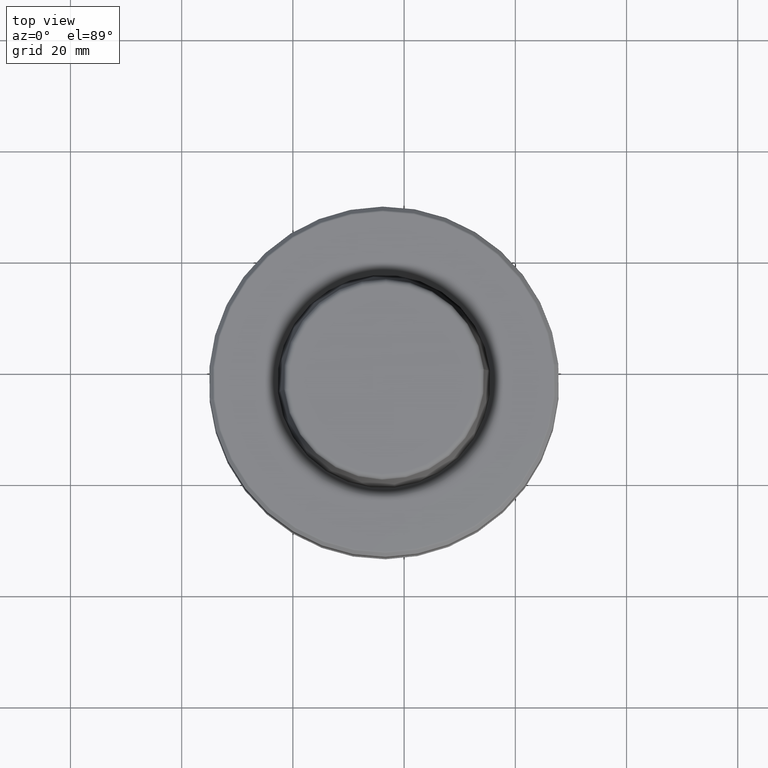
[diagram: clean part render]
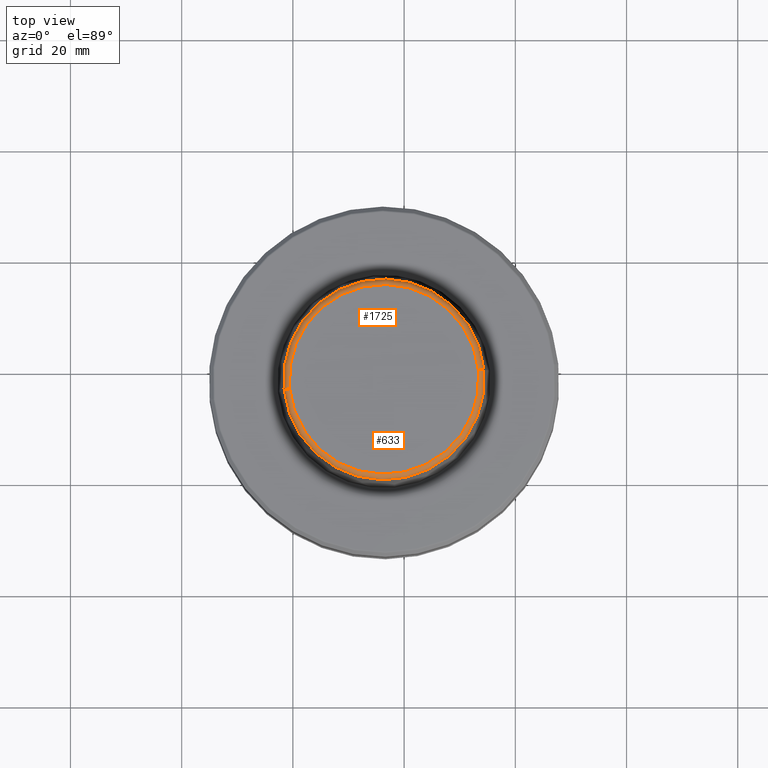
[diagram: same view with one multi-face feature highlighted, each face labeled with its STEP entity id]
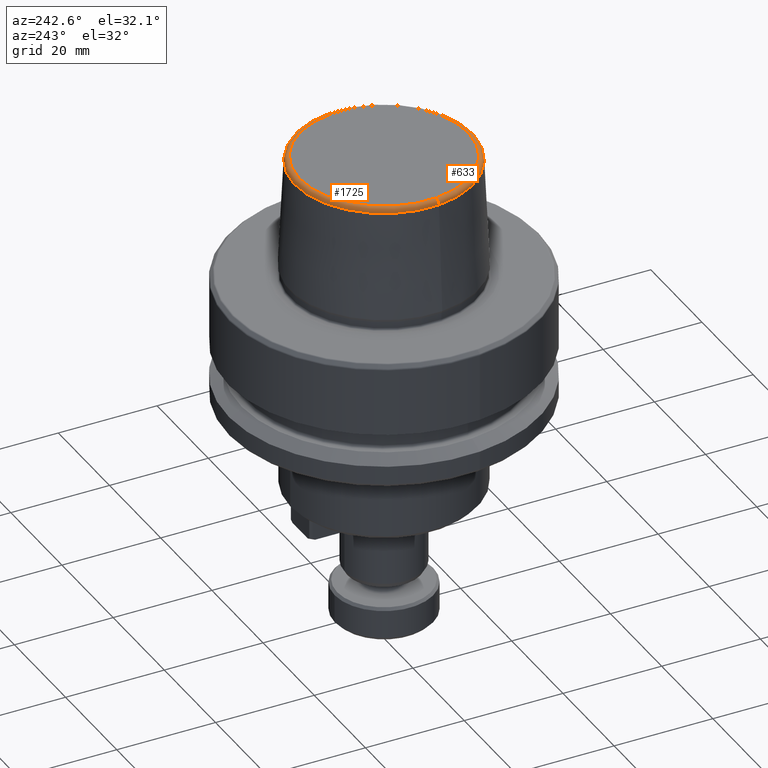
[diagram: same view with one multi-face feature highlighted, each face labeled with its STEP entity id]
A machine part, top view. The highlighted faces form ONE feature: a constant-radius fillet chain: 2 tangent blend faces with common blend radius 1 mm. The faces share edges in the B-rep.
A second angle (auxiliary view) of the same feature is appended — it is thin or edge-on in the first view.
Their STEP definitions:
[1] entity #633 (Torus):
#12 = CARTESIAN_POINT ( 'NONE',  ( -23.61709746719498100, -2.613875991983149600, 87.18828533380995800 ) ) ;
#21 = ORIENTED_EDGE ( 'NONE', *, *, #2558, .T. ) ;
#241 = EDGE_CURVE ( 'NONE', #1072, #2581, #2578, .T. ) ;
#430 = ORIENTED_EDGE ( 'NONE', *, *, #1899, .F. ) ;
#588 = CARTESIAN_POINT ( 'NONE',  ( -6.646937506485730100, -0.8961057773085431300, 87.13824922329685300 ) ) ;
#633 = ADVANCED_FACE ( 'NONE', ( #2481 ), #1894, .T. ) ;
#738 = DIRECTION ( 'NONE',  ( -0.1007083643362365700, 0.9949159890929082400, 0.0000000000000000000 ) ) ;
#751 = CARTESIAN_POINT ( 'NONE',  ( -23.61709746719498100, -2.613875991983149600, 88.13824922329685300 ) ) ;
#822 = DIRECTION ( 'NONE',  ( 0.9949159890929081300, 0.1007083643362366900, 0.0000000000000000000 ) ) ;
#844 = CIRCLE ( 'NONE', #1988, 17.05687731099929700 ) ;
#940 = EDGE_LOOP ( 'NONE', ( #2335, #2008, #21, #430 ) ) ;
#984 = DIRECTION ( 'NONE',  ( 0.9949159890929081300, 0.1007083643362366900, 0.0000000000000000000 ) ) ;
#1036 = DIRECTION ( 'NONE',  ( 0.9949159890929082400, 0.1007083643362367000, 0.0000000000000000000 ) ) ;
#1046 = CARTESIAN_POINT ( 'NONE',  ( -5.653267739877530400, -0.7955235593297955700, 87.18828533380995800 ) ) ;
#1072 = VERTEX_POINT ( 'NONE', #2913 ) ;
#1247 = EDGE_CURVE ( 'NONE', #1072, #2255, #2731, .T. ) ;
#1279 = DIRECTION ( 'NONE',  ( 0.0000000000000000000, 0.0000000000000000000, 1.000000000000000000 ) ) ;
#1342 = AXIS2_PLACEMENT_3D ( 'NONE', #2076, #738, #2293 ) ;
#1360 = CIRCLE ( 'NONE', #1375, 1.000000000000000900 ) ;
#1375 = AXIS2_PLACEMENT_3D ( 'NONE', #588, #2150, #822 ) ;
#1395 = DIRECTION ( 'NONE',  ( 0.0000000000000000000, 0.0000000000000000000, 1.000000000000000000 ) ) ;
#1840 = DIRECTION ( 'NONE',  ( 0.9949159890929081300, 0.1007083643362366900, 0.0000000000000000000 ) ) ;
#1894 = TOROIDAL_SURFACE ( 'NONE', #2247, 17.05687731099929700, 1.000000000000000400 ) ;
#1899 = EDGE_CURVE ( 'NONE', #2255, #2282, #844, .T. ) ;
#1988 = AXIS2_PLACEMENT_3D ( 'NONE', #751, #2309, #984 ) ;
#2008 = ORIENTED_EDGE ( 'NONE', *, *, #241, .T. ) ;
#2016 = CARTESIAN_POINT ( 'NONE',  ( -40.58725742790422700, -4.331646206657754100, 88.13824922329685300 ) ) ;
#2076 = CARTESIAN_POINT ( 'NONE',  ( -40.58725742790422700, -4.331646206657754100, 87.13824922329685300 ) ) ;
#2150 = DIRECTION ( 'NONE',  ( 0.1007083643362367000, -0.9949159890929082400, 0.0000000000000000000 ) ) ;
#2247 = AXIS2_PLACEMENT_3D ( 'NONE', #2734, #1395, #1840 ) ;
#2255 = VERTEX_POINT ( 'NONE', #2016 ) ;
#2282 = VERTEX_POINT ( 'NONE', #2926 ) ;
#2293 = DIRECTION ( 'NONE',  ( -0.9949159890929082400, -0.1007083643362359800, 0.0000000000000000000 ) ) ;
#2309 = DIRECTION ( 'NONE',  ( 0.0000000000000000000, 0.0000000000000000000, 1.000000000000000000 ) ) ;
#2335 = ORIENTED_EDGE ( 'NONE', *, *, #1247, .F. ) ;
#2481 = FACE_OUTER_BOUND ( 'NONE', #940, .T. ) ;
#2558 = EDGE_CURVE ( 'NONE', #2581, #2282, #1360, .T. ) ;
#2578 = CIRCLE ( 'NONE', #2821, 18.05562472032996300 ) ;
#2581 = VERTEX_POINT ( 'NONE', #1046 ) ;
#2731 = CIRCLE ( 'NONE', #1342, 1.000000000000002400 ) ;
#2734 = CARTESIAN_POINT ( 'NONE',  ( -23.61709746719498100, -2.613875991983149600, 87.13824922329685300 ) ) ;
#2821 = AXIS2_PLACEMENT_3D ( 'NONE', #12, #1279, #1036 ) ;
#2913 = CARTESIAN_POINT ( 'NONE',  ( -41.58092719451243400, -4.432228424636501400, 87.18828533380995800 ) ) ;
#2926 = CARTESIAN_POINT ( 'NONE',  ( -6.646937506485730100, -0.8961057773085431300, 88.13824922329685300 ) ) ;
[2] entity #1725 (Torus):
#26 = AXIS2_PLACEMENT_3D ( 'NONE', #2029, #2473, #2705 ) ;
#29 = CARTESIAN_POINT ( 'NONE',  ( -23.61709746719498100, -2.613875991983149600, 88.13824922329685300 ) ) ;
#74 = ORIENTED_EDGE ( 'NONE', *, *, #2199, .T. ) ;
#91 = FACE_OUTER_BOUND ( 'NONE', #776, .T. ) ;
#259 = DIRECTION ( 'NONE',  ( 0.9949159890929081300, 0.1007083643362366900, 0.0000000000000000000 ) ) ;
#358 = AXIS2_PLACEMENT_3D ( 'NONE', #2000, #649, #2219 ) ;
#465 = CIRCLE ( 'NONE', #358, 18.05562472032996300 ) ;
#588 = CARTESIAN_POINT ( 'NONE',  ( -6.646937506485730100, -0.8961057773085431300, 87.13824922329685300 ) ) ;
#598 = EDGE_CURVE ( 'NONE', #2282, #2255, #1520, .T. ) ;
#649 = DIRECTION ( 'NONE',  ( 0.0000000000000000000, 0.0000000000000000000, 1.000000000000000000 ) ) ;
#738 = DIRECTION ( 'NONE',  ( -0.1007083643362365700, 0.9949159890929082400, 0.0000000000000000000 ) ) ;
#776 = EDGE_LOOP ( 'NONE', ( #74, #1197, #1484, #1353 ) ) ;
#822 = DIRECTION ( 'NONE',  ( 0.9949159890929081300, 0.1007083643362366900, 0.0000000000000000000 ) ) ;
#1046 = CARTESIAN_POINT ( 'NONE',  ( -5.653267739877530400, -0.7955235593297955700, 87.18828533380995800 ) ) ;
#1072 = VERTEX_POINT ( 'NONE', #2913 ) ;
#1197 = ORIENTED_EDGE ( 'NONE', *, *, #1247, .T. ) ;
#1247 = EDGE_CURVE ( 'NONE', #1072, #2255, #2731, .T. ) ;
#1342 = AXIS2_PLACEMENT_3D ( 'NONE', #2076, #738, #2293 ) ;
#1353 = ORIENTED_EDGE ( 'NONE', *, *, #2558, .F. ) ;
#1360 = CIRCLE ( 'NONE', #1375, 1.000000000000000900 ) ;
#1375 = AXIS2_PLACEMENT_3D ( 'NONE', #588, #2150, #822 ) ;
#1484 = ORIENTED_EDGE ( 'NONE', *, *, #598, .F. ) ;
#1518 = AXIS2_PLACEMENT_3D ( 'NONE', #29, #1608, #259 ) ;
#1520 = CIRCLE ( 'NONE', #1518, 17.05687731099929700 ) ;
#1608 = DIRECTION ( 'NONE',  ( 0.0000000000000000000, 0.0000000000000000000, 1.000000000000000000 ) ) ;
#1725 = ADVANCED_FACE ( 'NONE', ( #91 ), #2332, .T. ) ;
#2000 = CARTESIAN_POINT ( 'NONE',  ( -23.61709746719498100, -2.613875991983149600, 87.18828533380995800 ) ) ;
#2016 = CARTESIAN_POINT ( 'NONE',  ( -40.58725742790422700, -4.331646206657754100, 88.13824922329685300 ) ) ;
#2029 = CARTESIAN_POINT ( 'NONE',  ( -23.61709746719498100, -2.613875991983149600, 87.13824922329685300 ) ) ;
#2076 = CARTESIAN_POINT ( 'NONE',  ( -40.58725742790422700, -4.331646206657754100, 87.13824922329685300 ) ) ;
#2150 = DIRECTION ( 'NONE',  ( 0.1007083643362367000, -0.9949159890929082400, 0.0000000000000000000 ) ) ;
#2199 = EDGE_CURVE ( 'NONE', #2581, #1072, #465, .T. ) ;
#2219 = DIRECTION ( 'NONE',  ( 0.9949159890929082400, 0.1007083643362367000, 0.0000000000000000000 ) ) ;
#2255 = VERTEX_POINT ( 'NONE', #2016 ) ;
#2282 = VERTEX_POINT ( 'NONE', #2926 ) ;
#2293 = DIRECTION ( 'NONE',  ( -0.9949159890929082400, -0.1007083643362359800, 0.0000000000000000000 ) ) ;
#2332 = TOROIDAL_SURFACE ( 'NONE', #26, 17.05687731099929700, 1.000000000000000400 ) ;
#2473 = DIRECTION ( 'NONE',  ( 0.0000000000000000000, 0.0000000000000000000, 1.000000000000000000 ) ) ;
#2558 = EDGE_CURVE ( 'NONE', #2581, #2282, #1360, .T. ) ;
#2581 = VERTEX_POINT ( 'NONE', #1046 ) ;
#2705 = DIRECTION ( 'NONE',  ( 0.9949159890929081300, 0.1007083643362366900, 0.0000000000000000000 ) ) ;
#2731 = CIRCLE ( 'NONE', #1342, 1.000000000000002400 ) ;
#2913 = CARTESIAN_POINT ( 'NONE',  ( -41.58092719451243400, -4.432228424636501400, 87.18828533380995800 ) ) ;
#2926 = CARTESIAN_POINT ( 'NONE',  ( -6.646937506485730100, -0.8961057773085431300, 88.13824922329685300 ) ) ;